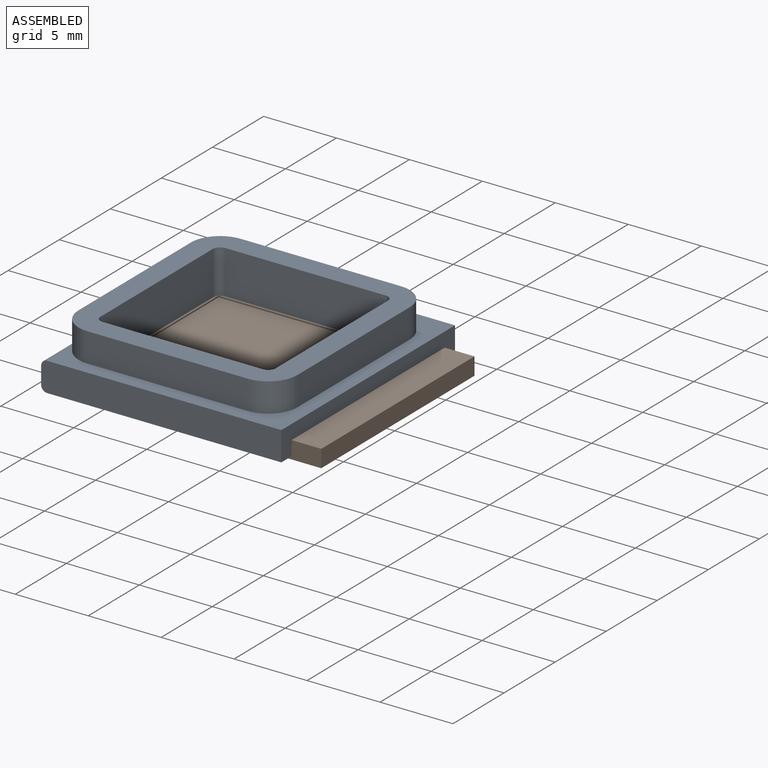
[diagram: assembled view]
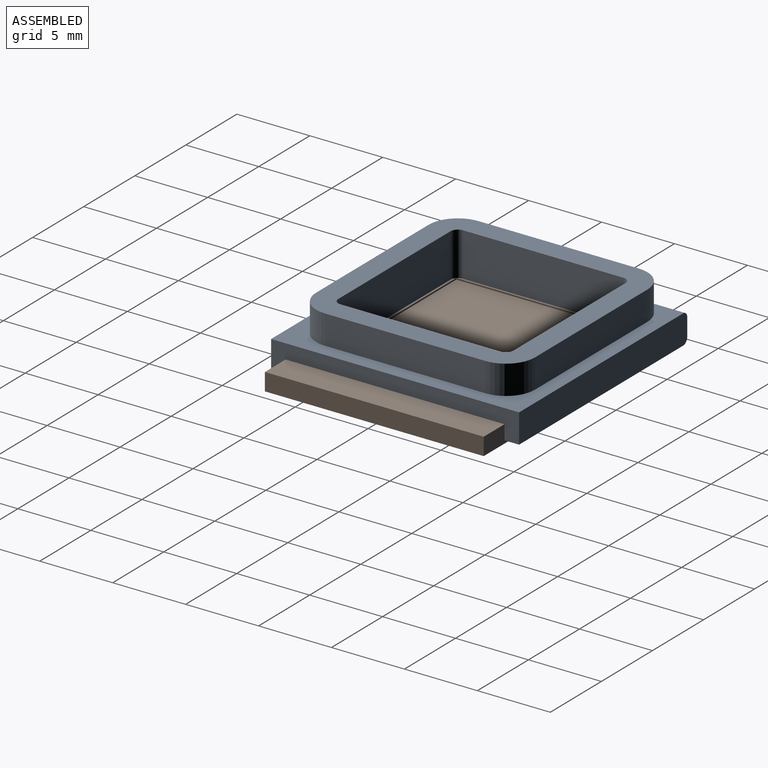
[diagram: assembled view, second angle]
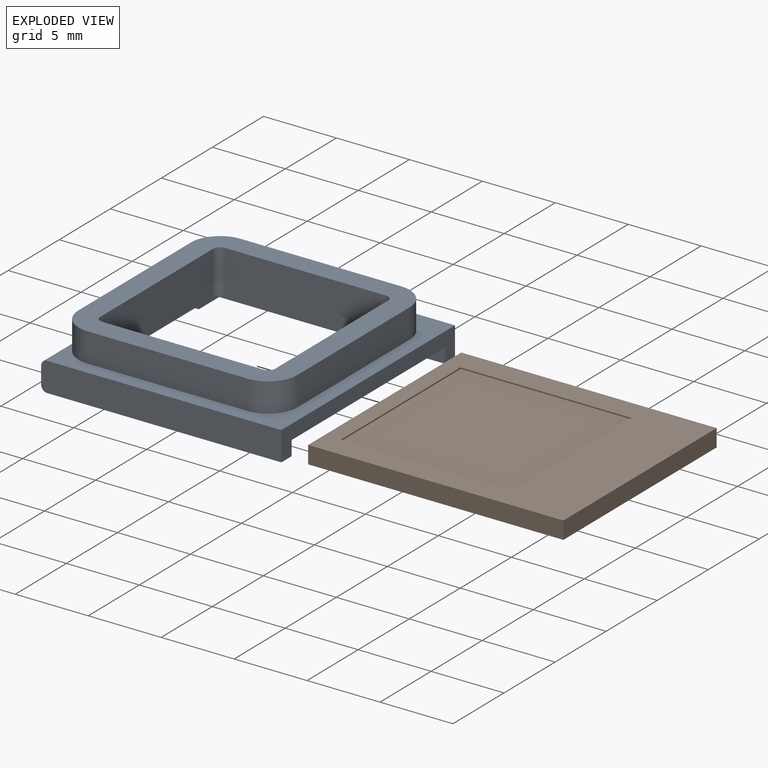
[diagram: exploded view]
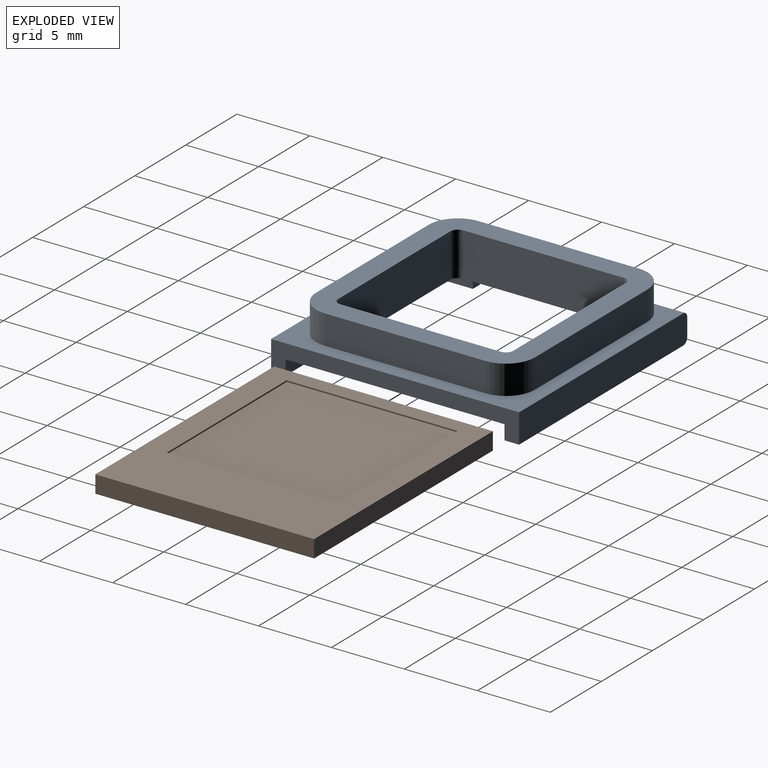
[diagram: exploded view, second angle]
ASSEMBLY  parts=2 mates=3
PART A: 38 faces, bbox 16.5x17x4 mm
  f0: plane 15.47x15mm, normal (0,0,-1), area 88.2mm2, adj f8,f9,f10,f11,f12,f13,f14,f15
  f1: plane 11x2mm, normal (1,0,0), area 22mm2, adj f2,f16,f17,f25
  f2: cylinder r=2mm len=2mm, axis (0,0,-1), area 6.3mm2, adj f1,f3,f17,f25
  f3: plane 11x2mm, normal (0,1,0), area 22mm2, adj f2,f4,f17,f25
  f4: cylinder r=2mm len=2mm, axis (0,0,-1), area 6.3mm2, adj f3,f5,f17,f19,f25
  f5: plane 11x1mm, normal (-1,0,0), area 11mm2, adj f4,f6,f17,f33
  f6: cylinder r=2mm len=2mm, axis (0,0,-1), area 6.3mm2, adj f5,f7,f17,f18,f25
  f7: plane 11x2mm, normal (0,-1,0), area 22mm2, adj f6,f16,f17,f25
  f8: plane 11x3mm, normal (1,0,0), area 33mm2, adj f0,f9,f15,f17
  f9: cylinder r=0.5mm len=3mm, axis (0,0,-1), area 2.4mm2, adj f0,f8,f10,f17
  f10: plane 11x3mm, normal (0,-1,0), area 33mm2, adj f0,f9,f11,f17
  f11: cylinder r=0.5mm len=3mm, axis (0,0,-1), area 2.4mm2, adj f0,f10,f12,f17
  f12: plane 11x3mm, normal (-1,0,0), area 33mm2, adj f0,f11,f13,f17
  f13: cylinder r=0.5mm len=3mm, axis (0,0,-1), area 2.4mm2, adj f0,f12,f14,f17
  f14: plane 11x3mm, normal (0,1,0), area 33mm2, adj f0,f13,f15,f17
  f15: cylinder r=0.5mm len=3mm, axis (0,0,-1), area 2.4mm2, adj f0,f8,f14,f17
  f16: cylinder r=2mm len=2mm, axis (0,0,-1), area 6.3mm2, adj f1,f7,f17,f25
  f17: plane 15x15mm, normal (0,0,1), area 77.8mm2, adj f1,f2,f3,f4,f5,f6,f7,f8
  f18: plane 3x1mm, normal (0,1,0), area 2.5mm2, adj f6,f24,f25,f26,f28,f32,f33,f35
  f19: plane 3x1mm, normal (0,-1,0), area 2.5mm2, adj f4,f20,f25,f30,f31,f32,f33,f34
  f20: plane 3x1.2mm, normal (-1,0,0), area 3.6mm2, adj f19,f21,f34,f36
  f21: plane 16.47x2mm, normal (0,1,0), area 32.9mm2, adj f20,f22,f25,f31,f34,f36
  f22: plane 17x2mm, normal (1,0,0), area 19mm2, adj f0,f21,f23,f25,f27,f28,f29,f31
  f23: plane 16.47x2mm, normal (0,-1,0), area 32.9mm2, adj f22,f24,f25,f28,f35,f37
  f24: plane 3x1.2mm, normal (-1,0,0), area 3.6mm2, adj f18,f23,f35,f37
  f25: plane 17x16.07mm, normal (0,0,1), area 50.8mm2, adj f1,f2,f3,f4,f6,f7,f16,f18
  f26: plane 2x1mm, normal (1,0,0), area 2mm2, adj f0,f18,f27,f28
  f27: plane 15.47x1mm, normal (0,1,0), area 15.5mm2, adj f0,f22,f26,f28
  f28: plane 16.07x3mm, normal (0,0,-1), area 17.3mm2, adj f18,f22,f23,f26,f27,f35
  f29: plane 15.47x1mm, normal (0,-1,0), area 15.5mm2, adj f0,f22,f30,f31
  f30: plane 2x1mm, normal (1,0,0), area 2mm2, adj f0,f19,f29,f31
  f31: plane 16.07x3mm, normal (0,0,-1), area 17.3mm2, adj f19,f21,f22,f29,f30,f34
  f32: plane 11x2mm, normal (-1,0,0), area 22mm2, adj f0,f18,f19,f33
  f33: plane 11x0.54mm, normal (0,0,-1), area 5.9mm2, adj f5,f18,f19,f32
  f34: cylinder r=0.4mm len=3mm, axis (0,-1,0), area 1.9mm2, adj f19,f20,f21,f31
  f35: cylinder r=0.4mm len=3mm, axis (0,-1,0), area 1.9mm2, adj f18,f23,f24,f28
  f36: cylinder r=0.4mm len=3mm, axis (0,1,0), area 1.9mm2, adj f19,f20,f21,f25
  f37: cylinder r=0.4mm len=3mm, axis (0,1,0), area 1.9mm2, adj f18,f23,f24,f25
PART B: 11 faces, bbox 17.5x15x1.2 mm
  f0: plane 17.5x15mm, normal (0,0,1), area 124.9mm2, adj f1,f2,f3,f4,f6,f7,f8,f9
  f1: plane 15x1.2mm, normal (-1,0,0), area 18mm2, adj f0,f2,f4,f5
  f2: plane 17.5x1.2mm, normal (0,-1,0), area 21mm2, adj f0,f1,f3,f5
  f3: plane 15x1.2mm, normal (1,0,0), area 18mm2, adj f0,f2,f4,f5
  f4: plane 17.5x1.2mm, normal (0,1,0), area 21mm2, adj f0,f1,f3,f5
  f5: plane 17.5x15mm, normal (0,0,-1), area 262.5mm2, adj f1,f2,f3,f4
  f6: plane 11.73x0.1mm, normal (0,-1,0), area 1.2mm2, adj f0,f7,f9,f10
  f7: plane 11.73x0.1mm, normal (1,0,0), area 1.2mm2, adj f0,f6,f8,f10
  f8: plane 11.73x0.1mm, normal (0,1,0), area 1.2mm2, adj f0,f7,f9,f10
  f9: plane 11.73x0.1mm, normal (-1,0,0), area 1.2mm2, adj f0,f6,f8,f10
  f10: plane 11.73x11.73mm, normal (0,0,1), area 137.6mm2, adj f6,f7,f8,f9
PLACE A rot(axis=(0.45,0.89,0.11),0deg) t=(-8.09,7.89,6.7)mm
PLACE B rot(axis=(0.45,0.89,0.11),0deg) t=(-7.56,-7.11,4.5)mm
MATE planar B.f1 <-> A.f26  axis (-1,0,0) through (-7.56,0.39,5.1)mm
MATE planar A.f0 <-> B.f0  axis (0,0,-1) through (1.43,0.39,5.7)mm
MATE planar B.f2 <-> A.f27  axis (0,-1,0) through (1.19,-7.11,5.1)mm
